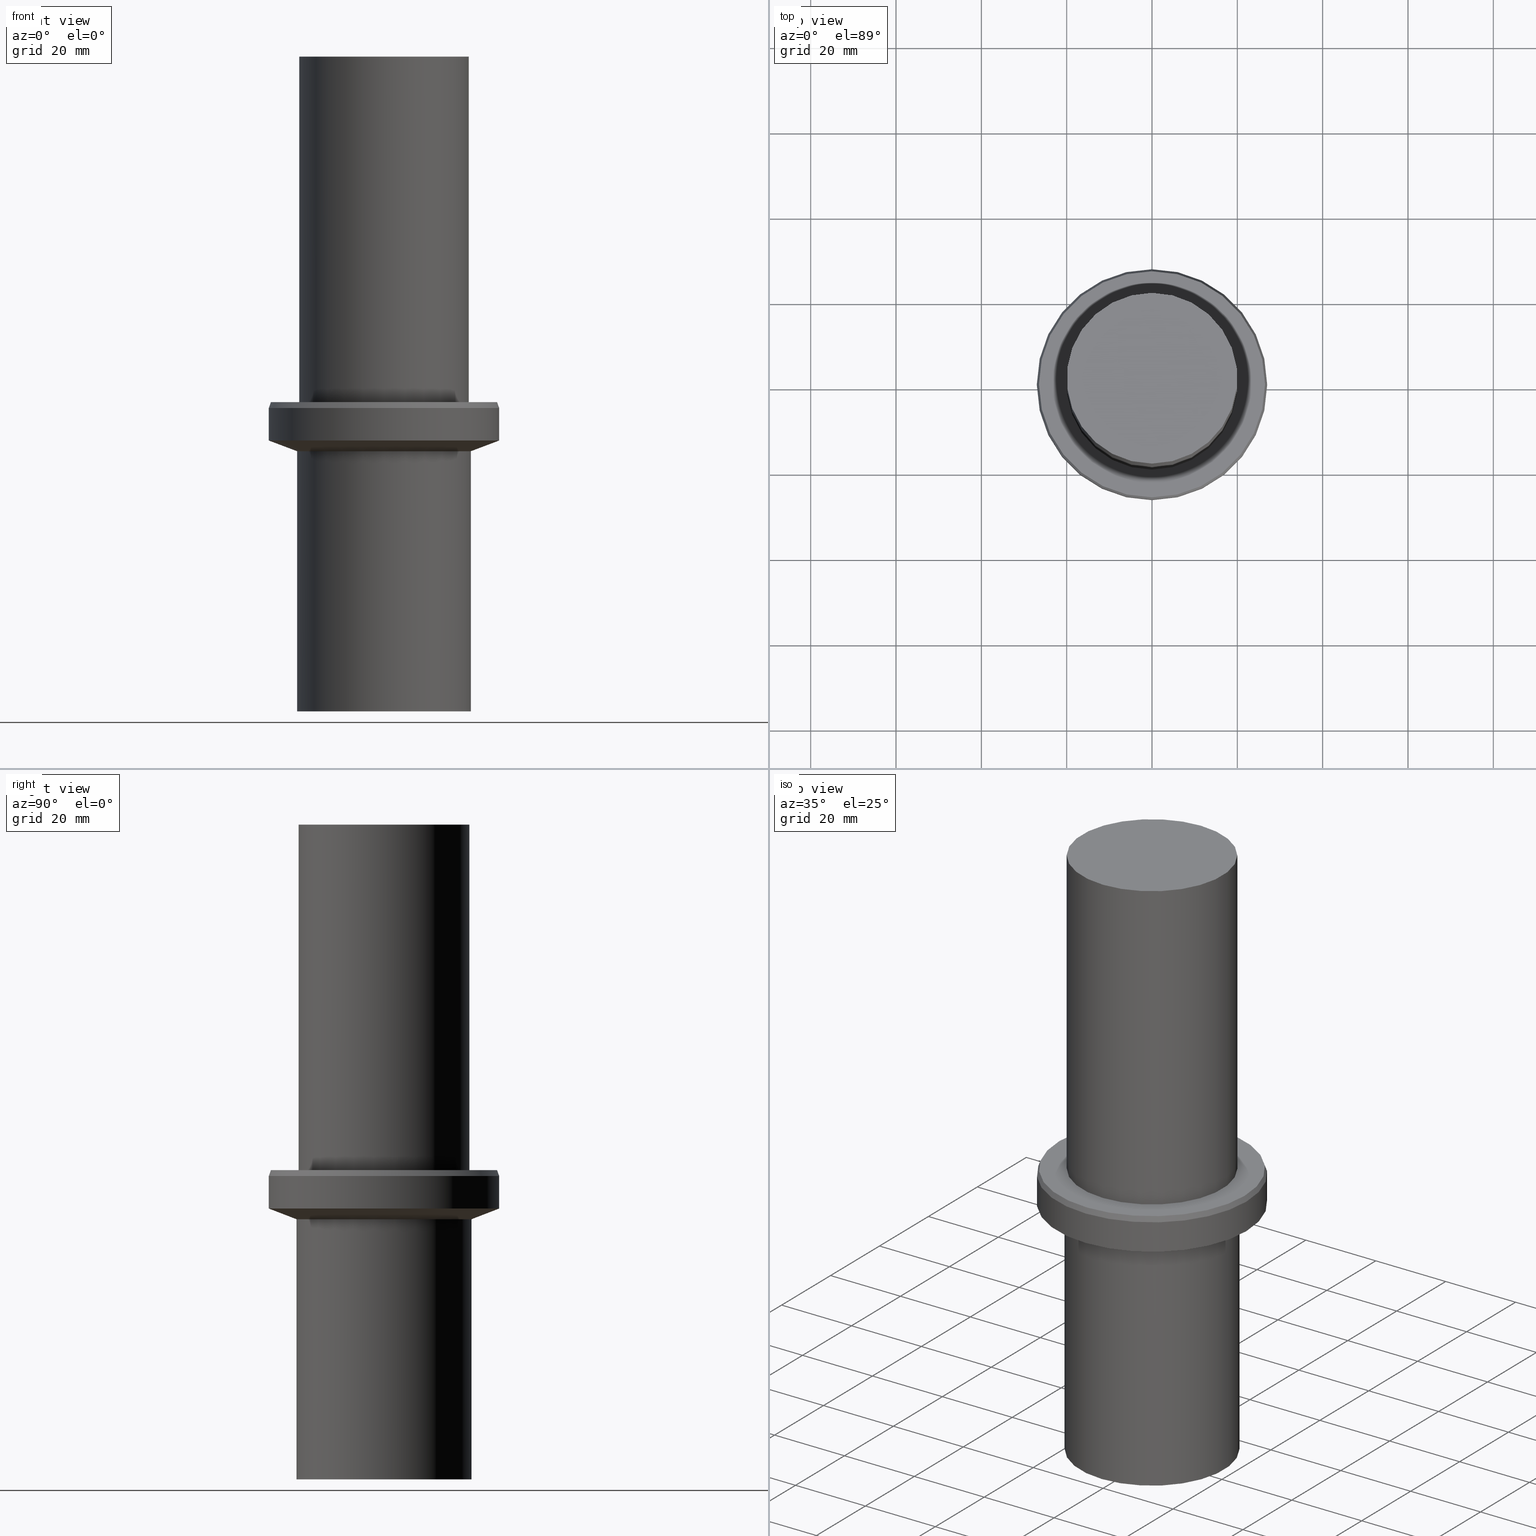
[diagram: canonical four-view strip — front | top / right | iso, engineering-drawing reading convention]
A machine part, canonical four-view strip (front | top / right | iso — engineering-drawing reading convention). The complete STEP part file that produces these views, byte-faithful:
ISO-10303-21;
HEADER;
FILE_DESCRIPTION((''),'1');
FILE_NAME('V:/02_3D_Field-HP\X2\FF71FF6FFF8CFF9F5916\X0\2013/02_Step_Field-HP\X2\FF71FF6FFF8CFF9F5916\X0\2013/31_\X2\30E130AC30B730F330AF30ED30BF30C330D430F330B030DB30EB30C0\X0\ MGT/MGT_ANSI_STEP/MGT36-AU1-2.5.stp','2018-02-02T01:34:17',(''),(''),'Spatial Interop R21 SP3','Kubotek KeyCreator 2011 V10.0.2 (22737)',' ');
FILE_SCHEMA(('automotive_design'));
ENDSEC;
DATA;
#1=MECHANICAL_DESIGN_GEOMETRIC_PRESENTATION_REPRESENTATION(' ',(#10,#11,#12,#13,#14,#15,#16,#17,#18,#19,#20,#21,#22,#23,#24,#25),#6);
#2=PRODUCT_DEFINITION_CONTEXT('',#26,'design');
#3=APPLICATION_PROTOCOL_DEFINITION('INTERNATIONAL STANDARD','automotive_design',1994,#26);
#4=PRODUCT_CATEGORY_RELATIONSHIP('NONE','NONE',#27,#28);
#5=SHAPE_DEFINITION_REPRESENTATION(#29,#30);
#6= (GEOMETRIC_REPRESENTATION_CONTEXT(3)GLOBAL_UNCERTAINTY_ASSIGNED_CONTEXT((#33))GLOBAL_UNIT_ASSIGNED_CONTEXT((#35,#36,#37))REPRESENTATION_CONTEXT('NONE','WORKSPACE'));
#10=STYLED_ITEM('',(#39),#40);
#11=STYLED_ITEM('',(#41),#42);
#12=STYLED_ITEM('',(#43,#44),#45);
#13=STYLED_ITEM('',(#46),#47);
#14=STYLED_ITEM('',(#48,#49),#50);
#15=STYLED_ITEM('',(#51,#52),#53);
#16=STYLED_ITEM('',(#54,#55),#56);
#17=STYLED_ITEM('',(#57),#58);
#18=STYLED_ITEM('',(#59,#60),#61);
#19=STYLED_ITEM('',(#62,#63),#64);
#20=STYLED_ITEM('',(#65,#66),#67);
#21=STYLED_ITEM('',(#68),#69);
#22=STYLED_ITEM('',(#70),#71);
#23=STYLED_ITEM('',(#72,#73),#74);
#24=STYLED_ITEM('',(#75),#76);
#25=STYLED_ITEM('',(#77,#78),#79);
#26=APPLICATION_CONTEXT(' ');
#27=PRODUCT_CATEGORY('part','NONE');
#28=PRODUCT_RELATED_PRODUCT_CATEGORY('detail',' ',(#80));
#29=PRODUCT_DEFINITION_SHAPE('NONE','NONE',#81);
#30=ADVANCED_BREP_SHAPE_REPRESENTATION('Unnamed[1]',(#56,#82),#6);
#33=UNCERTAINTY_MEASURE_WITH_UNIT(LENGTH_MEASURE(1.0E-006),#35,'','');
#35= (CONVERSION_BASED_UNIT('MILLIMETRE',#85)LENGTH_UNIT()NAMED_UNIT(#88));
#36= (NAMED_UNIT(#90)PLANE_ANGLE_UNIT()SI_UNIT($,.RADIAN.));
#37= (NAMED_UNIT(#90)SOLID_ANGLE_UNIT()SI_UNIT($,.STERADIAN.));
#39=PRESENTATION_STYLE_ASSIGNMENT((#96));
#40=EDGE_CURVE('Unnamed[1]',#97,#97,#98,.T.);
#41=PRESENTATION_STYLE_ASSIGNMENT((#99));
#42=EDGE_CURVE('Unnamed[1]',#100,#100,#101,.T.);
#43=PRESENTATION_STYLE_ASSIGNMENT((#102));
#44=PRESENTATION_STYLE_ASSIGNMENT((#103));
#45=ADVANCED_FACE('Unnamed[1]',(#104,#105),#106,.T.);
#46=PRESENTATION_STYLE_ASSIGNMENT((#107));
#47=EDGE_CURVE('Unnamed[1]',#108,#108,#109,.T.);
#48=PRESENTATION_STYLE_ASSIGNMENT((#110));
#49=PRESENTATION_STYLE_ASSIGNMENT((#111));
#50=ADVANCED_FACE('Unnamed[1]',(#112,#113),#114,.T.);
#51=PRESENTATION_STYLE_ASSIGNMENT((#115));
#52=PRESENTATION_STYLE_ASSIGNMENT((#116));
#53=ADVANCED_FACE('Unnamed[1]',(#117,#118),#119,.T.);
#54=PRESENTATION_STYLE_ASSIGNMENT((#120));
#55=PRESENTATION_STYLE_ASSIGNMENT((#121));
#56=MANIFOLD_SOLID_BREP('Unnamed[1]',#122);
#57=PRESENTATION_STYLE_ASSIGNMENT((#123));
#58=EDGE_CURVE('Unnamed[1]',#124,#124,#125,.T.);
#59=PRESENTATION_STYLE_ASSIGNMENT((#126));
#60=PRESENTATION_STYLE_ASSIGNMENT((#127));
#61=ADVANCED_FACE('Unnamed[1]',(#128),#129,.T.);
#62=PRESENTATION_STYLE_ASSIGNMENT((#130));
#63=PRESENTATION_STYLE_ASSIGNMENT((#131));
#64=ADVANCED_FACE('Unnamed[1]',(#132),#133,.T.);
#65=PRESENTATION_STYLE_ASSIGNMENT((#134));
#66=PRESENTATION_STYLE_ASSIGNMENT((#135));
#67=ADVANCED_FACE('Unnamed[1]',(#136,#137),#138,.T.);
#68=PRESENTATION_STYLE_ASSIGNMENT((#139));
#69=EDGE_CURVE('Unnamed[1]',#140,#140,#141,.T.);
#70=PRESENTATION_STYLE_ASSIGNMENT((#142));
#71=EDGE_CURVE('Unnamed[1]',#143,#143,#144,.T.);
#72=PRESENTATION_STYLE_ASSIGNMENT((#145));
#73=PRESENTATION_STYLE_ASSIGNMENT((#146));
#74=ADVANCED_FACE('Unnamed[1]',(#147,#148),#149,.T.);
#75=PRESENTATION_STYLE_ASSIGNMENT((#150));
#76=EDGE_CURVE('Unnamed[1]',#151,#151,#152,.T.);
#77=PRESENTATION_STYLE_ASSIGNMENT((#153));
#78=PRESENTATION_STYLE_ASSIGNMENT((#154));
#79=ADVANCED_FACE('Unnamed[1]',(#155,#156),#157,.T.);
#80=PRODUCT('Unnamed[1]','Unnamed[1]','PART-Unnamed[1]-DESC',(#158));
#81=PRODUCT_DEFINITION('NONE','NONE',#159,#2);
#82=AXIS2_PLACEMENT_3D('',#160,#161,#162);
#85=LENGTH_MEASURE_WITH_UNIT(LENGTH_MEASURE(1.0),#163);
#88=DIMENSIONAL_EXPONENTS(1.0,0.0,0.0,0.0,0.0,0.0,0.0);
#90=DIMENSIONAL_EXPONENTS(0.0,0.0,0.0,0.0,0.0,0.0,0.0);
#96=CURVE_STYLE('',#164,POSITIVE_LENGTH_MEASURE(1000.0),#165);
#97=VERTEX_POINT('',#166);
#98=CIRCLE('',#167,20.0000000000027);
#99=CURVE_STYLE('',#168,POSITIVE_LENGTH_MEASURE(1000.0),#169);
#100=VERTEX_POINT('',#170);
#101=CIRCLE('',#171,20.0000000000027);
#102=SURFACE_STYLE_USAGE(.BOTH.,#172);
#103=CURVE_STYLE('',#173,POSITIVE_LENGTH_MEASURE(1000.0),#174);
#104=FACE_BOUND('',#175,.T.);
#105=FACE_BOUND('',#176,.T.);
#106=CYLINDRICAL_SURFACE('',#177,20.0000000000027);
#107=CURVE_STYLE('',#178,POSITIVE_LENGTH_MEASURE(1000.0),#179);
#108=VERTEX_POINT('',#180);
#109=CIRCLE('',#181,26.9999999999945);
#110=SURFACE_STYLE_USAGE(.BOTH.,#182);
#111=CURVE_STYLE('',#183,POSITIVE_LENGTH_MEASURE(1000.0),#184);
#112=FACE_BOUND('',#185,.T.);
#113=FACE_BOUND('',#186,.T.);
#114=CONICAL_SURFACE('',#187,26.7499999999955,0.349065850398426);
#115=SURFACE_STYLE_USAGE(.BOTH.,#188);
#116=CURVE_STYLE('',#189,POSITIVE_LENGTH_MEASURE(1000.0),#190);
#117=FACE_BOUND('',#191,.T.);
#118=FACE_BOUND('',#192,.T.);
#119=CYLINDRICAL_SURFACE('',#193,26.9999999999945);
#120=SURFACE_STYLE_USAGE(.BOTH.,#194);
#121=CURVE_STYLE('',#195,POSITIVE_LENGTH_MEASURE(1000.0),#196);
#122=CLOSED_SHELL('',(#64,#45,#74,#50,#53,#67,#79,#61));
#123=CURVE_STYLE('',#197,POSITIVE_LENGTH_MEASURE(1000.0),#198);
#124=VERTEX_POINT('',#199);
#125=CIRCLE('',#200,26.4999999999965);
#126=SURFACE_STYLE_USAGE(.BOTH.,#201);
#127=CURVE_STYLE('',#202,POSITIVE_LENGTH_MEASURE(1000.0),#203);
#128=FACE_OUTER_BOUND('',#204,.T.);
#129=PLANE('',#205);
#130=SURFACE_STYLE_USAGE(.BOTH.,#206);
#131=CURVE_STYLE('',#207,POSITIVE_LENGTH_MEASURE(1000.0),#208);
#132=FACE_OUTER_BOUND('',#209,.T.);
#133=PLANE('',#210);
#134=SURFACE_STYLE_USAGE(.BOTH.,#211);
#135=CURVE_STYLE('',#212,POSITIVE_LENGTH_MEASURE(1000.0),#213);
#136=FACE_BOUND('',#214,.T.);
#137=FACE_BOUND('',#215,.T.);
#138=CONICAL_SURFACE('',#216,23.7499999999973,1.20241730396966);
#139=CURVE_STYLE('',#217,POSITIVE_LENGTH_MEASURE(1000.0),#218);
#140=VERTEX_POINT('',#219);
#141=CIRCLE('',#220,26.9999999999945);
#142=CURVE_STYLE('',#221,POSITIVE_LENGTH_MEASURE(1000.0),#222);
#143=VERTEX_POINT('',#223);
#144=CIRCLE('',#224,20.5);
#145=SURFACE_STYLE_USAGE(.BOTH.,#225);
#146=CURVE_STYLE('',#226,POSITIVE_LENGTH_MEASURE(1000.0),#227);
#147=FACE_OUTER_BOUND('',#228,.T.);
#148=FACE_BOUND('',#229,.T.);
#149=PLANE('',#230);
#150=CURVE_STYLE('',#231,POSITIVE_LENGTH_MEASURE(1000.0),#232);
#151=VERTEX_POINT('',#233);
#152=CIRCLE('',#234,20.4999999999988);
#153=SURFACE_STYLE_USAGE(.BOTH.,#235);
#154=CURVE_STYLE('',#236,POSITIVE_LENGTH_MEASURE(1000.0),#237);
#155=FACE_BOUND('',#238,.T.);
#156=FACE_BOUND('',#239,.T.);
#157=CYLINDRICAL_SURFACE('',#240,20.4999999999994);
#158=PRODUCT_CONTEXT('',#26,'mechanical');
#159=PRODUCT_DEFINITION_FORMATION_WITH_SPECIFIED_SOURCE(' ','NONE',#80,.NOT_KNOWN.);
#160=CARTESIAN_POINT('',(0.0,0.0,0.0));
#161=DIRECTION('',(0.0,0.0,1.0));
#162=DIRECTION('',(1.0,0.0,0.0));
#163= (NAMED_UNIT(#88)LENGTH_UNIT()SI_UNIT(.MILLI.,.METRE.));
#164=DRAUGHTING_PRE_DEFINED_CURVE_FONT('continuous');
#165=COLOUR_RGB('',0.0,1.0,0.0);
#166=CARTESIAN_POINT('',(-9.39916418345572E-015,20.0000000000027,153.499999999996));
#167=AXIS2_PLACEMENT_3D('',#242,#243,#244);
#168=DRAUGHTING_PRE_DEFINED_CURVE_FONT('continuous');
#169=COLOUR_RGB('',0.0,1.0,0.0);
#170=CARTESIAN_POINT('',(-4.439344646909E-015,20.0000000000027,72.4999999999974));
#171=AXIS2_PLACEMENT_3D('',#245,#246,#247);
#172=SURFACE_SIDE_STYLE('',(#248));
#173=DRAUGHTING_PRE_DEFINED_CURVE_FONT('continuous');
#174=COLOUR_RGB('',0.0,1.0,0.0);
#175=EDGE_LOOP('',(#249));
#176=EDGE_LOOP('',(#250));
#177=AXIS2_PLACEMENT_3D('',#251,#252,#253);
#178=DRAUGHTING_PRE_DEFINED_CURVE_FONT('continuous');
#179=COLOUR_RGB('',0.0,1.0,0.0);
#180=CARTESIAN_POINT('',(-3.88825358729252E-015,26.9999999999945,63.4999999999946));
#181=AXIS2_PLACEMENT_3D('',#254,#255,#256);
#182=SURFACE_SIDE_STYLE('',(#257));
#183=DRAUGHTING_PRE_DEFINED_CURVE_FONT('continuous');
#184=COLOUR_RGB('',0.0,1.0,0.0);
#185=EDGE_LOOP('',(#258));
#186=EDGE_LOOP('',(#259));
#187=AXIS2_PLACEMENT_3D('',#260,#261,#262);
#188=SURFACE_SIDE_STYLE('',(#263));
#189=DRAUGHTING_PRE_DEFINED_CURVE_FONT('continuous');
#190=COLOUR_RGB('',0.0,1.0,0.0);
#191=EDGE_LOOP('',(#264));
#192=EDGE_LOOP('',(#265));
#193=AXIS2_PLACEMENT_3D('',#266,#267,#268);
#194=SURFACE_SIDE_STYLE('',(#269));
#195=DRAUGHTING_PRE_DEFINED_CURVE_FONT('continuous');
#196=COLOUR_RGB('',0.0,1.0,0.0);
#197=DRAUGHTING_PRE_DEFINED_CURVE_FONT('continuous');
#198=COLOUR_RGB('',0.0,1.0,0.0);
#199=CARTESIAN_POINT('',(-4.439344646909E-015,26.4999999999965,72.4999999999974));
#200=AXIS2_PLACEMENT_3D('',#270,#271,#272);
#201=SURFACE_SIDE_STYLE('',(#273));
#202=DRAUGHTING_PRE_DEFINED_CURVE_FONT('continuous');
#203=COLOUR_RGB('',0.0,1.0,0.0);
#204=EDGE_LOOP('',(#274));
#205=AXIS2_PLACEMENT_3D('',#275,#276,#277);
#206=SURFACE_SIDE_STYLE('',(#278));
#207=DRAUGHTING_PRE_DEFINED_CURVE_FONT('continuous');
#208=COLOUR_RGB('',0.0,1.0,0.0);
#209=EDGE_LOOP('',(#279));
#210=AXIS2_PLACEMENT_3D('',#280,#281,#282);
#211=SURFACE_SIDE_STYLE('',(#283));
#212=DRAUGHTING_PRE_DEFINED_CURVE_FONT('continuous');
#213=COLOUR_RGB('',0.0,1.0,0.0);
#214=EDGE_LOOP('',(#284));
#215=EDGE_LOOP('',(#285));
#216=AXIS2_PLACEMENT_3D('',#286,#287,#288);
#217=DRAUGHTING_PRE_DEFINED_CURVE_FONT('continuous');
#218=COLOUR_RGB('',0.0,1.0,0.0);
#219=CARTESIAN_POINT('',(-4.3552274112226E-015,26.9999999999945,71.1262612902737));
#220=AXIS2_PLACEMENT_3D('',#289,#290,#291);
#221=DRAUGHTING_PRE_DEFINED_CURVE_FONT('continuous');
#222=COLOUR_RGB('',0.0,1.0,0.0);
#223=CARTESIAN_POINT('',(-3.73462184603165E-015,20.5,60.9910032612151));
#224=AXIS2_PLACEMENT_3D('',#292,#293,#294);
#225=SURFACE_SIDE_STYLE('',(#295));
#226=DRAUGHTING_PRE_DEFINED_CURVE_FONT('continuous');
#227=COLOUR_RGB('',0.0,1.0,0.0);
#228=EDGE_LOOP('',(#296));
#229=EDGE_LOOP('',(#297));
#230=AXIS2_PLACEMENT_3D('',#298,#299,#300);
#231=DRAUGHTING_PRE_DEFINED_CURVE_FONT('continuous');
#232=COLOUR_RGB('',0.0,1.0,0.0);
#233=CARTESIAN_POINT('',(0.0,20.4999999999988,0.0));
#234=AXIS2_PLACEMENT_3D('',#301,#302,#303);
#235=SURFACE_SIDE_STYLE('',(#304));
#236=DRAUGHTING_PRE_DEFINED_CURVE_FONT('continuous');
#237=COLOUR_RGB('',0.0,1.0,0.0);
#238=EDGE_LOOP('',(#305));
#239=EDGE_LOOP('',(#306));
#240=AXIS2_PLACEMENT_3D('',#307,#308,#309);
#242=CARTESIAN_POINT('',(-9.39916418345572E-015,-1.87983283669114E-014,153.499999999996));
#243=DIRECTION('',(6.12323399573677E-017,1.22464679914744E-016,-1.0));
#244=DIRECTION('',(-1.23259516440789E-032,1.0,1.22464679914744E-016));
#245=CARTESIAN_POINT('',(-4.439344646909E-015,-8.87868929381799E-015,72.4999999999974));
#246=DIRECTION('',(6.12323399573677E-017,1.22464679914744E-016,-1.0));
#247=DIRECTION('',(-1.23259516440789E-032,1.0,1.22464679914744E-016));
#248=SURFACE_STYLE_FILL_AREA(#310);
#249=ORIENTED_EDGE('',*,*,#42,.F.);
#250=ORIENTED_EDGE('',*,*,#40,.T.);
#251=CARTESIAN_POINT('',(-6.91925441518236E-015,-1.38385088303647E-014,112.999999999997));
#252=DIRECTION('',(6.12323399573677E-017,1.22464679914744E-016,-1.0));
#253=DIRECTION('',(-1.23259516440789E-032,1.0,1.22464679914744E-016));
#254=CARTESIAN_POINT('',(-3.88825358729252E-015,-7.77650717458503E-015,63.4999999999946));
#255=DIRECTION('',(6.12323399573677E-017,1.22464679914718E-016,-1.0));
#256=DIRECTION('',(-1.23259516440775E-032,1.0,1.22464679914718E-016));
#257=SURFACE_STYLE_FILL_AREA(#311);
#258=ORIENTED_EDGE('',*,*,#69,.F.);
#259=ORIENTED_EDGE('',*,*,#58,.T.);
#260=CARTESIAN_POINT('',(-4.3972860290658E-015,-8.7945720581316E-015,71.8131306451356));
#261=DIRECTION('',(6.12323399573677E-017,1.22464679914719E-016,-1.0));
#262=DIRECTION('',(-1.2325951644077E-032,1.0,1.22464679914719E-016));
#263=SURFACE_STYLE_FILL_AREA(#312);
#264=ORIENTED_EDGE('',*,*,#47,.F.);
#265=ORIENTED_EDGE('',*,*,#69,.T.);
#266=CARTESIAN_POINT('',(-4.12174049925756E-015,-8.24348099851511E-015,67.3131306451342));
#267=DIRECTION('',(6.12323399573677E-017,1.22464679914718E-016,-1.0));
#268=DIRECTION('',(-1.23259516440775E-032,1.0,1.22464679914718E-016));
#269=SURFACE_STYLE_FILL_AREA(#313);
#270=CARTESIAN_POINT('',(-4.439344646909E-015,-8.87868929381799E-015,72.4999999999974));
#271=DIRECTION('',(6.12323399573676E-017,1.22464679914719E-016,-1.0));
#272=DIRECTION('',(-1.23259516440799E-032,1.0,1.22464679914719E-016));
#273=SURFACE_STYLE_FILL_AREA(#314);
#274=ORIENTED_EDGE('',*,*,#76,.T.);
#275=CARTESIAN_POINT('',(1.69605094622518E-028,10.2499999999994,-2.77822209682199E-012));
#276=DIRECTION('',(6.12323399573677E-017,2.71168522906466E-013,-1.0));
#277=DIRECTION('',(-1.66091103330768E-029,1.0,2.71168522906466E-013));
#278=SURFACE_STYLE_FILL_AREA(#315);
#279=ORIENTED_EDGE('',*,*,#40,.F.);
#280=CARTESIAN_POINT('',(-9.39916418345575E-015,10.0000000000013,153.499999999997));
#281=DIRECTION('',(-6.12323399573677E-017,4.81944413517655E-014,1.0));
#282=DIRECTION('',(-2.94623126417595E-030,-1.0,4.81944413517655E-014));
#283=SURFACE_STYLE_FILL_AREA(#316);
#284=ORIENTED_EDGE('',*,*,#71,.F.);
#285=ORIENTED_EDGE('',*,*,#47,.T.);
#286=CARTESIAN_POINT('',(-3.81143771666208E-015,-7.62287543332416E-015,62.2455016306048));
#287=DIRECTION('',(-6.12323399573677E-017,-1.22464679914747E-016,1.0));
#288=DIRECTION('',(-1.23259516440797E-032,1.0,1.22464679914747E-016));
#289=CARTESIAN_POINT('',(-4.3552274112226E-015,-8.7104548224452E-015,71.1262612902737));
#290=DIRECTION('',(6.12323399573677E-017,1.22464679914718E-016,-1.0));
#291=DIRECTION('',(-1.23259516440775E-032,1.0,1.22464679914718E-016));
#292=CARTESIAN_POINT('',(-3.73462184603164E-015,-7.46924369206329E-015,60.9910032612151));
#293=DIRECTION('',(6.12323399573677E-017,1.22464679914746E-016,-1.0));
#294=DIRECTION('',(-1.23259516440783E-032,1.0,1.22464679914746E-016));
#295=SURFACE_STYLE_FILL_AREA(#317);
#296=ORIENTED_EDGE('',*,*,#58,.F.);
#297=ORIENTED_EDGE('',*,*,#42,.T.);
#298=CARTESIAN_POINT('',(-4.439344646909E-015,23.2499999999996,72.4999999999974));
#299=DIRECTION('',(-6.12323399573677E-017,-2.03546435311683E-015,1.0));
#300=DIRECTION('',(1.29463397971922E-031,-1.0,-2.03546435311683E-015));
#301=CARTESIAN_POINT('',(0.0,0.0,0.0));
#302=DIRECTION('',(6.12323399573677E-017,1.22464679914753E-016,-1.0));
#303=DIRECTION('',(-1.2325951644079E-032,1.0,1.22464679914753E-016));
#304=SURFACE_STYLE_FILL_AREA(#318);
#305=ORIENTED_EDGE('',*,*,#76,.F.);
#306=ORIENTED_EDGE('',*,*,#71,.T.);
#307=CARTESIAN_POINT('',(-1.86731092301582E-015,-3.73462184603164E-015,30.4955016306076));
#308=DIRECTION('',(6.12323399573677E-017,1.22464679914749E-016,-1.0));
#309=DIRECTION('',(-1.23259516440787E-032,1.0,1.22464679914749E-016));
#310=FILL_AREA_STYLE('',(#319));
#311=FILL_AREA_STYLE('',(#320));
#312=FILL_AREA_STYLE('',(#321));
#313=FILL_AREA_STYLE('',(#322));
#314=FILL_AREA_STYLE('',(#323));
#315=FILL_AREA_STYLE('',(#324));
#316=FILL_AREA_STYLE('',(#325));
#317=FILL_AREA_STYLE('',(#326));
#318=FILL_AREA_STYLE('',(#327));
#319=FILL_AREA_STYLE_COLOUR('',#328);
#320=FILL_AREA_STYLE_COLOUR('',#329);
#321=FILL_AREA_STYLE_COLOUR('',#330);
#322=FILL_AREA_STYLE_COLOUR('',#331);
#323=FILL_AREA_STYLE_COLOUR('',#332);
#324=FILL_AREA_STYLE_COLOUR('',#333);
#325=FILL_AREA_STYLE_COLOUR('',#334);
#326=FILL_AREA_STYLE_COLOUR('',#335);
#327=FILL_AREA_STYLE_COLOUR('',#336);
#328=COLOUR_RGB('',0.0,1.0,0.0);
#329=COLOUR_RGB('',0.0,1.0,0.0);
#330=COLOUR_RGB('',0.0,1.0,0.0);
#331=COLOUR_RGB('',0.0,1.0,0.0);
#332=COLOUR_RGB('',0.0,1.0,0.0);
#333=COLOUR_RGB('',0.0,1.0,0.0);
#334=COLOUR_RGB('',0.0,1.0,0.0);
#335=COLOUR_RGB('',0.0,1.0,0.0);
#336=COLOUR_RGB('',0.0,1.0,0.0);
ENDSEC;
END-ISO-10303-21;
